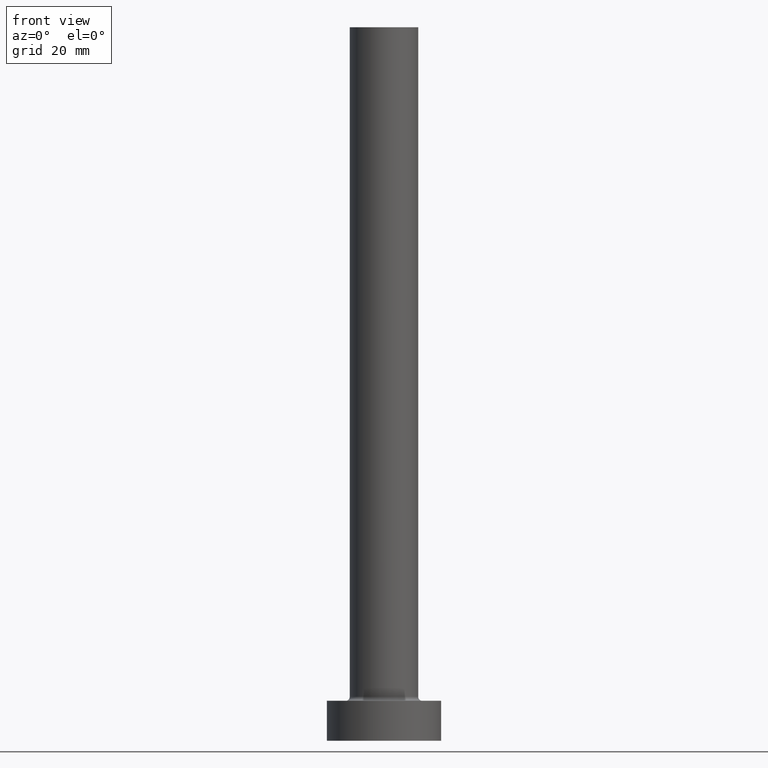
[diagram: clean part render]
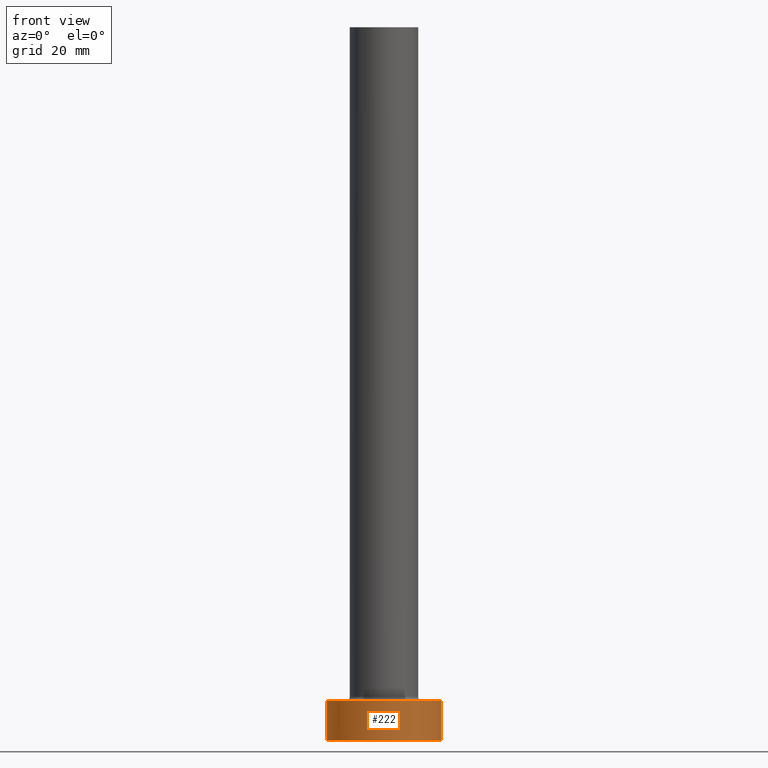
[diagram: same view with one face highlighted and labeled with its STEP entity id]
A machine part, front view. The second image highlights one B-rep face of the part: STEP entity #222.
In plain terms, the highlighted cylindrical surface (partial cylindrical patch) has radius 10 mm, axis along (-0, -0, -1).
Its self-contained STEP definition (entity closure, byte-faithful):
#1 = FACE_OUTER_BOUND ( 'NONE', #267, .T. ) ;
#24 = CARTESIAN_POINT ( 'NONE',  ( 0.000000000000000000, 0.000000000000000000, 7.000000000000000000 ) ) ;
#25 = DIRECTION ( 'NONE',  ( -0.000000000000000000, -0.000000000000000000, -1.000000000000000000 ) ) ;
#27 = EDGE_CURVE ( 'NONE', #334, #236, #229, .T. ) ;
#42 = DIRECTION ( 'NONE',  ( -0.000000000000000000, -0.000000000000000000, -1.000000000000000000 ) ) ;
#46 = CARTESIAN_POINT ( 'NONE',  ( -10.00000000000000000, 0.000000000000000000, 7.000000000000000000 ) ) ;
#89 = VECTOR ( 'NONE', #42, 1000.000000000000000 ) ;
#98 = CARTESIAN_POINT ( 'NONE',  ( 0.000000000000000000, 0.000000000000000000, 7.000000000000000000 ) ) ;
#101 = CARTESIAN_POINT ( 'NONE',  ( 10.00000000000000000, 1.224646799147353256E-15, 7.000000000000000000 ) ) ;
#105 = CARTESIAN_POINT ( 'NONE',  ( 10.00000000000000000, 1.224646799147353256E-15, 0.000000000000000000 ) ) ;
#112 = AXIS2_PLACEMENT_3D ( 'NONE', #98, #237, #390 ) ;
#116 = EDGE_CURVE ( 'NONE', #334, #415, #142, .T. ) ;
#126 = DIRECTION ( 'NONE',  ( 0.000000000000000000, 0.000000000000000000, 1.000000000000000000 ) ) ;
#132 = VERTEX_POINT ( 'NONE', #105 ) ;
#142 = LINE ( 'NONE', #433, #89 ) ;
#146 = EDGE_CURVE ( 'NONE', #415, #132, #444, .T. ) ;
#160 = ORIENTED_EDGE ( 'NONE', *, *, #455, .F. ) ;
#171 = ORIENTED_EDGE ( 'NONE', *, *, #27, .F. ) ;
#190 = AXIS2_PLACEMENT_3D ( 'NONE', #24, #319, #450 ) ;
#196 = CYLINDRICAL_SURFACE ( 'NONE', #112, 10.00000000000000000 ) ;
#222 = ADVANCED_FACE ( 'NONE', ( #1 ), #196, .T. ) ;
#229 = CIRCLE ( 'NONE', #190, 10.00000000000000000 ) ;
#236 = VERTEX_POINT ( 'NONE', #101 ) ;
#237 = DIRECTION ( 'NONE',  ( -0.000000000000000000, -0.000000000000000000, -1.000000000000000000 ) ) ;
#239 = AXIS2_PLACEMENT_3D ( 'NONE', #336, #126, #326 ) ;
#240 = ORIENTED_EDGE ( 'NONE', *, *, #116, .T. ) ;
#245 = CARTESIAN_POINT ( 'NONE',  ( -10.00000000000000000, 0.000000000000000000, 0.000000000000000000 ) ) ;
#267 = EDGE_LOOP ( 'NONE', ( #160, #171, #240, #457 ) ) ;
#319 = DIRECTION ( 'NONE',  ( 0.000000000000000000, 0.000000000000000000, 1.000000000000000000 ) ) ;
#326 = DIRECTION ( 'NONE',  ( 1.000000000000000000, 0.000000000000000000, 0.000000000000000000 ) ) ;
#334 = VERTEX_POINT ( 'NONE', #46 ) ;
#336 = CARTESIAN_POINT ( 'NONE',  ( 0.000000000000000000, 0.000000000000000000, 0.000000000000000000 ) ) ;
#390 = DIRECTION ( 'NONE',  ( -1.000000000000000000, 0.000000000000000000, 0.000000000000000000 ) ) ;
#415 = VERTEX_POINT ( 'NONE', #245 ) ;
#421 = CARTESIAN_POINT ( 'NONE',  ( 10.00000000000000000, 1.224646799147353256E-15, 7.000000000000000000 ) ) ;
#431 = VECTOR ( 'NONE', #25, 1000.000000000000000 ) ;
#433 = CARTESIAN_POINT ( 'NONE',  ( -10.00000000000000000, 0.000000000000000000, 7.000000000000000000 ) ) ;
#444 = CIRCLE ( 'NONE', #239, 10.00000000000000000 ) ;
#450 = DIRECTION ( 'NONE',  ( 1.000000000000000000, 0.000000000000000000, 0.000000000000000000 ) ) ;
#455 = EDGE_CURVE ( 'NONE', #236, #132, #456, .T. ) ;
#456 = LINE ( 'NONE', #421, #431 ) ;
#457 = ORIENTED_EDGE ( 'NONE', *, *, #146, .T. ) ;